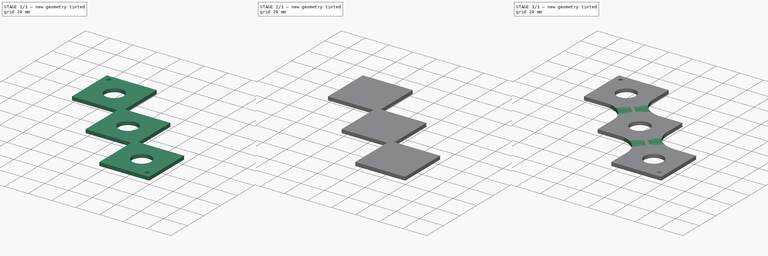
[diagram: build sequence overview — one tinted view per stage of 3, left to right]
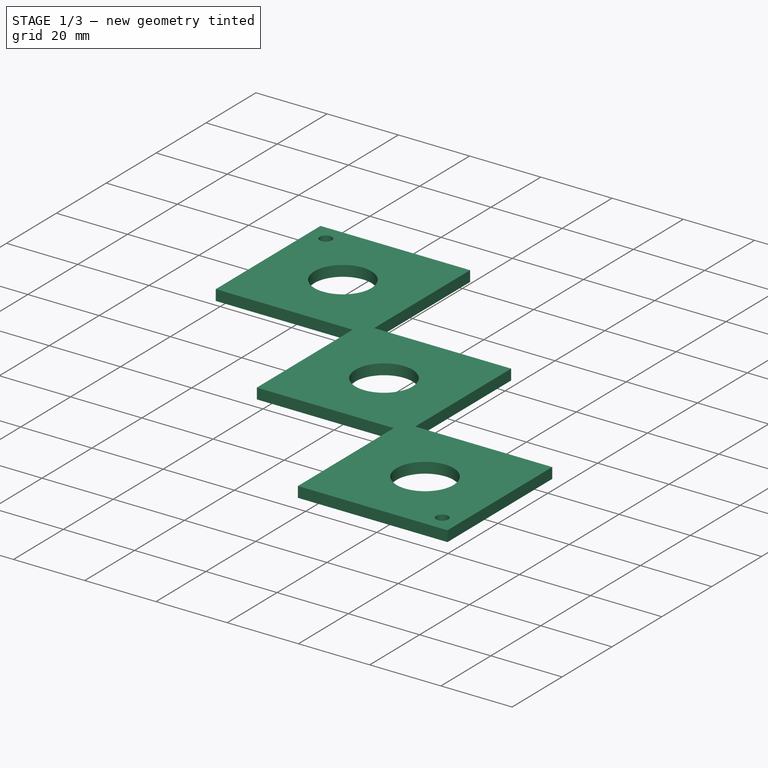
[diagram: stage 1 of 3 — iso view after this stage's code; geometry added in this stage tinted green]
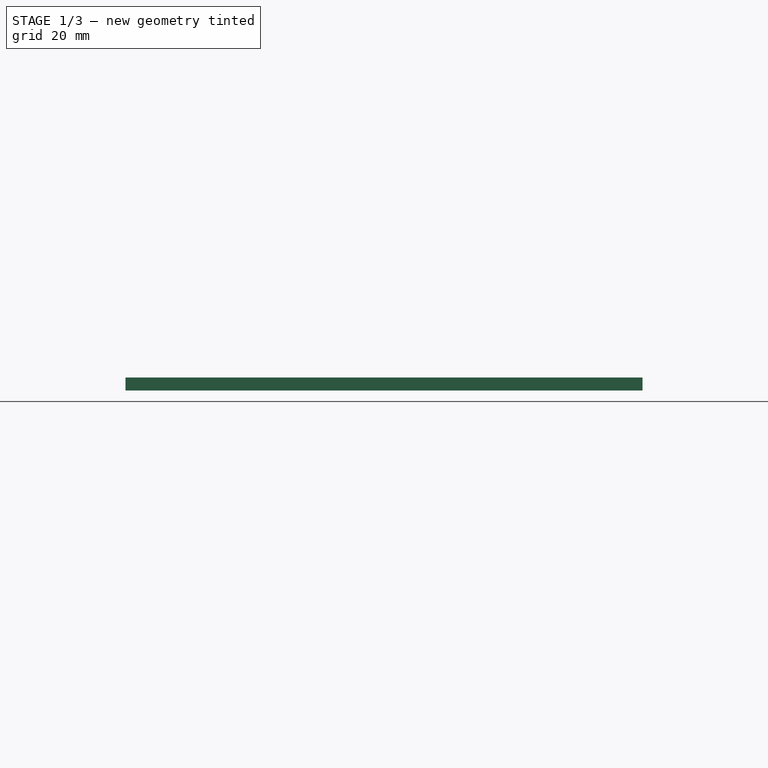
[diagram: stage 1 of 3 — front view after this stage's code; geometry added in this stage tinted green]
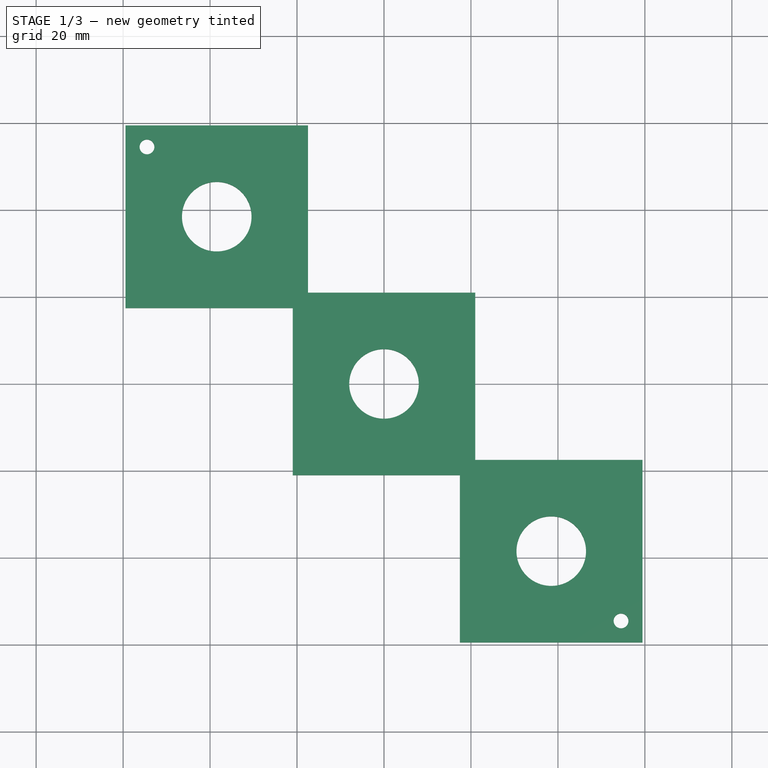
[diagram: stage 1 of 3 — top view after this stage's code; geometry added in this stage tinted green]
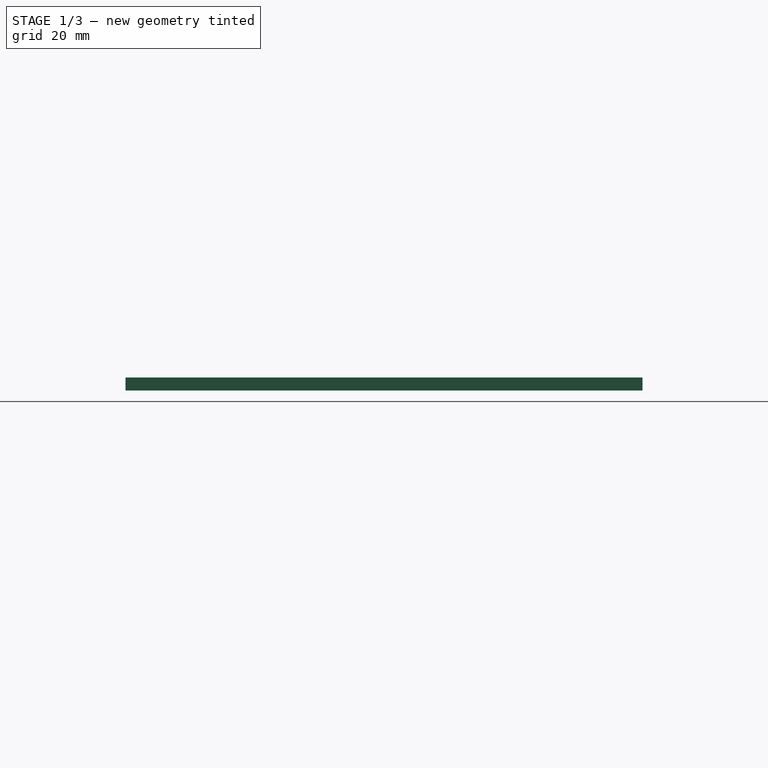
[diagram: stage 1 of 3 — right view after this stage's code; geometry added in this stage tinted green]
FCSTD DOCUMENT  (FreeCAD 0.18R14555 (Git shallow))
Label: Motor Plate
License: All rights reserved
LicenseURL: http://en.wikipedia.org/wiki/All_rights_reserved
objects: Sketcher::SketchObject×4, PartDesign::Pad×2, PartDesign::Pocket×2, PartDesign::Body×2, PartDesign::Fillet×1, PartDesign::Chamfer×1
note: 16 computed .brp shape members not serialized (recipe doc carries the construction recipe); baked Part::Feature solids carry a one-line shape summary decoded from their .brp

FEATURE [PartDesign::Body] Body
  Group = -> [Sketch,Pad,Sketch001,Pocket,Fillet]
  Origin = -> Origin
  Tip = -> Fillet
FEATURE [Sketcher::SketchObject] Sketch003
  MapMode = 2
  Placement = pos=(0,0,3) rot=(0,0,1;0rad)
  sketch-geometry (15):
    g0: LineSegment StartX=-59.4645 StartY=59.4645 StartZ=0 EndX=-59.4645 EndY=17.4645 EndZ=0
    g1: LineSegment StartX=-59.4645 StartY=17.4645 StartZ=0 EndX=-21 EndY=17.4645 EndZ=0
    g2: LineSegment StartX=-21 StartY=17.4645 StartZ=0 EndX=-21 EndY=-21 EndZ=0
    g3: LineSegment StartX=-21 StartY=-21 StartZ=0 EndX=17.4645 EndY=-21 EndZ=0
    g4: LineSegment StartX=17.4645 StartY=-21 StartZ=0 EndX=17.4645 EndY=-59.4645 EndZ=0
    g5: LineSegment StartX=17.4645 StartY=-59.4645 StartZ=0 EndX=59.4645 EndY=-59.4645 EndZ=0
    g6: LineSegment StartX=59.4645 StartY=-59.4645 StartZ=0 EndX=59.4645 EndY=-17.4645 EndZ=0
    g7: LineSegment StartX=59.4645 StartY=-17.4645 StartZ=0 EndX=21 EndY=-17.4645 EndZ=0
    g8: LineSegment StartX=21 StartY=-17.4645 StartZ=0 EndX=21 EndY=21 EndZ=0
    g9: LineSegment StartX=21 StartY=21 StartZ=0 EndX=-17.4645 EndY=21 EndZ=0
    g10: LineSegment StartX=-17.4645 StartY=21 StartZ=0 EndX=-17.4645 EndY=59.4645 EndZ=0
    g11: LineSegment StartX=-17.4645 StartY=59.4645 StartZ=0 EndX=-59.4645 EndY=59.4645 EndZ=0
    g12: LineSegment [constr] StartX=-17.4645 StartY=21 StartZ=0 EndX=-21 EndY=17.4645 EndZ=0
    g13: LineSegment [constr] StartX=21 StartY=-17.4645 StartZ=0 EndX=17.4645 EndY=-21 EndZ=0
    g14: LineSegment [constr] StartX=-19.2322 StartY=19.2322 StartZ=0 EndX=0 EndY=0 EndZ=0
  constraints (40):
    c: Coincident(g0,g1)
    c: Coincident(g2,g3)
    c: Coincident(g4,g5)
    c: Coincident(g5,g6)
    c: Coincident(g6,g7)
    c: Coincident(g8,g9)
    c: Coincident(g10,g11)
    c: Coincident(g11,g0)
    c: Horizontal(g11)
    c: Horizontal(g5)
    c: Horizontal(g7)
    c: Horizontal(g3)
    c: Horizontal(g9)
    c: Horizontal(g1)
    c: Vertical(g0)
    c: Vertical(g10)
    c: Vertical(g2)
    c: Vertical(g8)
    c: Equal(g0,g6)
    c: Equal(g11,g5)
    c: Equal(g10,g8)
    c: Equal(g9,g7)
    c: Equal(g1,g3)
    c: Equal(g11,g0)
    c: Symmetric(g8,g2,g-1)
    c: Symmetric(g0,g5,g-1)
    c: DistanceX(g11,g11) = 42
    c: Coincident(g10,g9)
    c: Coincident(g8,g7)
    c: Coincident(g4,g3)
    c: Coincident(g1,g2)
    c: Coincident(g12,g9)
    c: Coincident(g12,g1)
    c: Coincident(g13,g7)
    c: Coincident(g13,g3)
    c: Equal(g12,g13)
    c: Symmetric(g9,g1,g14)
    c: Coincident(g14,g-1)
    c: Distance(g12) = 5
    c: Perpendicular(g12,g14)
FEATURE [PartDesign::Pad] Pad001
  Length = 3
  Length2 = 100
  Placement = pos=(0,0,3) rot=(0,0,1;0rad)
  Profile = -> Sketch003
  Type = 0
FEATURE [Sketcher::SketchObject] Sketch002
  ExternalGeometry = -> [Pad001]
  MapMode = 5
  Placement = pos=(0,0,6) rot=(0,0,1;0rad)
  Support = -> [Pad001]
  sketch-geometry (9):
    g0: LineSegment [constr] StartX=-59.4645 StartY=59.4645 StartZ=0 EndX=59.4645 EndY=-59.4645 EndZ=0
    g1: LineSegment [constr] StartX=21 StartY=21 StartZ=0 EndX=-21 EndY=-21 EndZ=0
    g2: LineSegment [constr] StartX=-17.4645 StartY=59.4645 StartZ=0 EndX=-59.4645 EndY=17.4645 EndZ=0
    g3: LineSegment [constr] StartX=59.4645 StartY=-17.4645 StartZ=0 EndX=17.4645 EndY=-59.4645 EndZ=0
    g4: Circle CenterX=-38.4645 CenterY=38.4645 CenterZ=0 NormalX=0 NormalY=0 NormalZ=1 AngleXU=0 Radius=8
    g5: Circle CenterX=-1.9e-15 CenterY=-4.8e-15 CenterZ=0 NormalX=0 NormalY=0 NormalZ=1 AngleXU=0 Radius=8
    g6: Circle CenterX=38.4645 CenterY=-38.4645 CenterZ=0 NormalX=0 NormalY=0 NormalZ=1 AngleXU=0 Radius=8
    g7: Circle CenterX=-54.5147 CenterY=54.5147 CenterZ=0 NormalX=0 NormalY=0 NormalZ=1 AngleXU=0 Radius=1.7
    g8: Circle CenterX=54.5147 CenterY=-54.5147 CenterZ=0 NormalX=0 NormalY=0 NormalZ=1 AngleXU=0 Radius=1.7
  constraints (23):
    c: Coincident(g0,g-4)
    c: Coincident(g0,g-6)
    c: Coincident(g3,g-5)
    c: Coincident(g3,g-6)
    c: Coincident(g1,g-8)
    c: Coincident(g1,g-7)
    c: Coincident(g2,g-3)
    c: Coincident(g2,g-4)
    c: Equal(g6,g5)
    c: Equal(g5,g4)
    c: Radius(g6) = 8
    c: PointOnObject(g6,g0)
    c: PointOnObject(g6,g3)
    c: PointOnObject(g5,g0)
    c: PointOnObject(g5,g1)
    c: PointOnObject(g4,g2)
    c: PointOnObject(g4,g0)
    c: PointOnObject(g7,g0)
    c: PointOnObject(g8,g0)
    c: Equal(g8,g7)
    c: Radius(g7) = 1.7
    c: Distance(g7,g0) = 7
    c: Distance(g8,g0) = 7
FEATURE [PartDesign::Pocket] Pocket001
  BaseFeature = -> Pad001
  Length = 5
  Length2 = 100
  Placement = pos=(0,0,3) rot=(0,0,1;0rad)
  Profile = -> Sketch002
  Type = 1
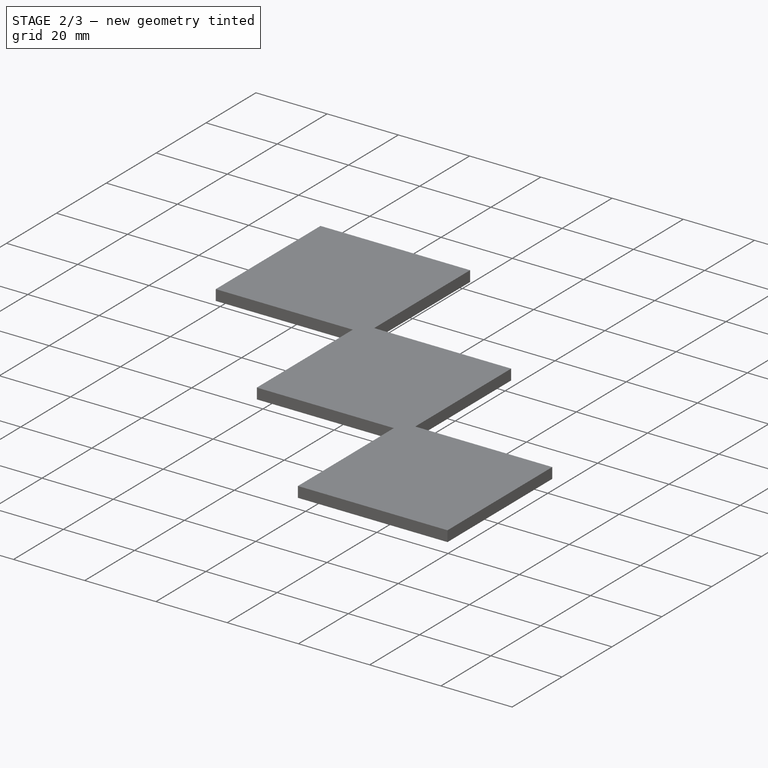
[diagram: stage 2 of 3 — iso view after this stage's code; geometry added in this stage tinted green]
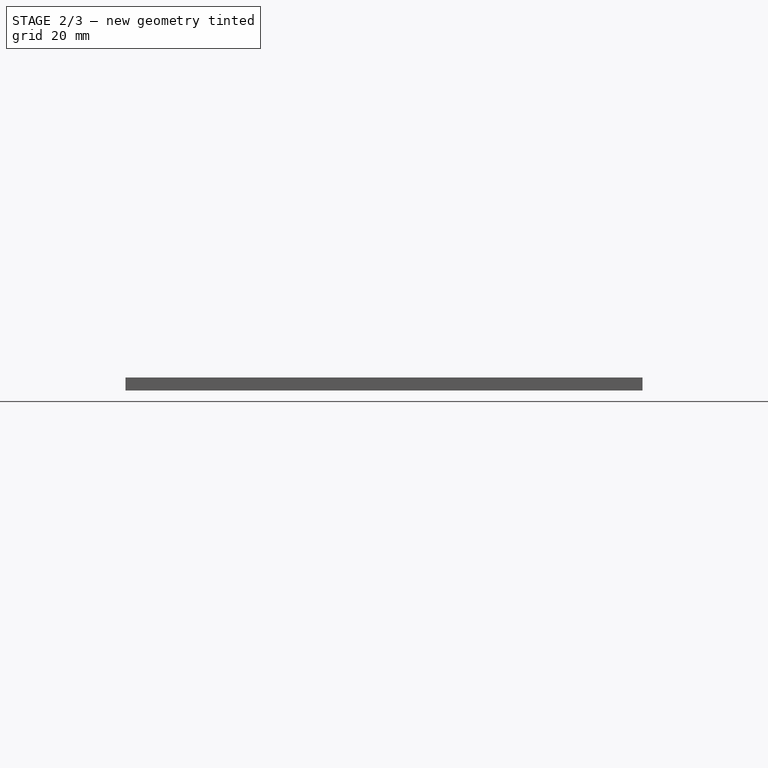
[diagram: stage 2 of 3 — front view after this stage's code; geometry added in this stage tinted green]
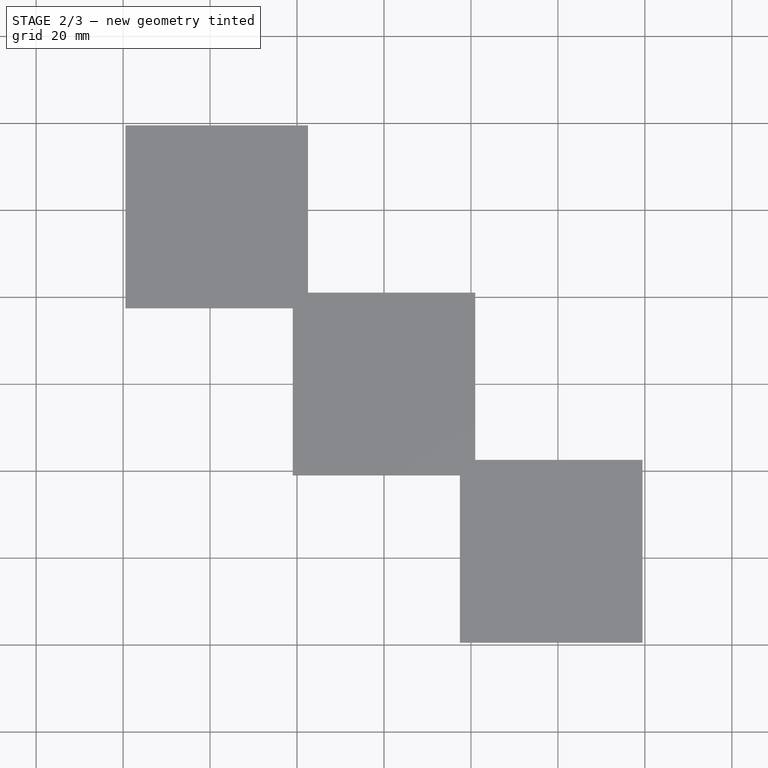
[diagram: stage 2 of 3 — top view after this stage's code; geometry added in this stage tinted green]
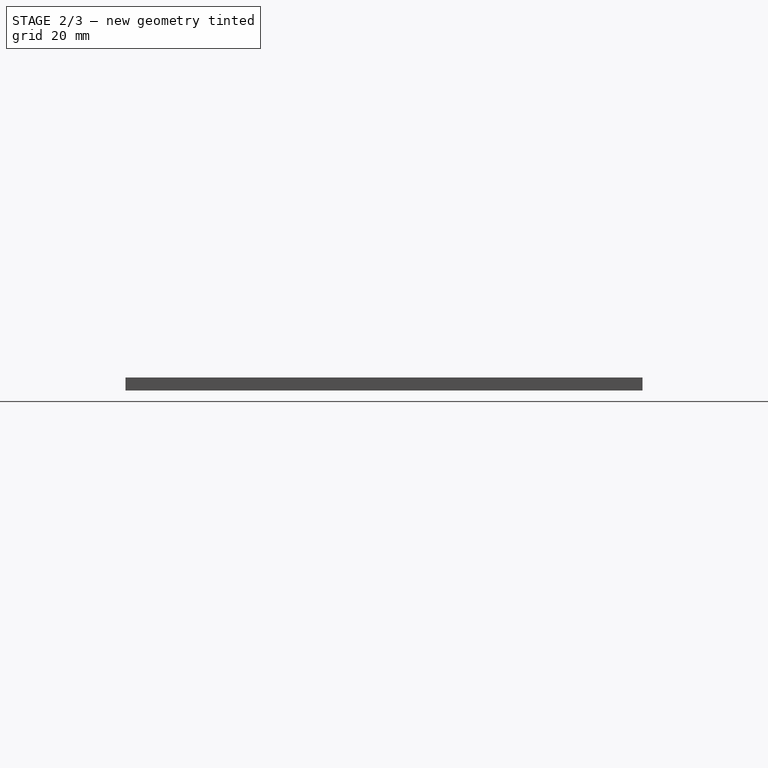
[diagram: stage 2 of 3 — right view after this stage's code; geometry added in this stage tinted green]
FEATURE [Sketcher::SketchObject] Sketch
  MapMode = 2
  Placement = pos=(0,0,3) rot=(0,0,1;0rad)
  sketch-geometry (15):
    g0: LineSegment StartX=-59.4645 StartY=59.4645 StartZ=0 EndX=-59.4645 EndY=17.4645 EndZ=0
    g1: LineSegment StartX=-59.4645 StartY=17.4645 StartZ=0 EndX=-21 EndY=17.4645 EndZ=0
    g2: LineSegment StartX=-21 StartY=17.4645 StartZ=0 EndX=-21 EndY=-21 EndZ=0
    g3: LineSegment StartX=-21 StartY=-21 StartZ=0 EndX=17.4645 EndY=-21 EndZ=0
    g4: LineSegment StartX=17.4645 StartY=-21 StartZ=0 EndX=17.4645 EndY=-59.4645 EndZ=0
    g5: LineSegment StartX=17.4645 StartY=-59.4645 StartZ=0 EndX=59.4645 EndY=-59.4645 EndZ=0
    g6: LineSegment StartX=59.4645 StartY=-59.4645 StartZ=0 EndX=59.4645 EndY=-17.4645 EndZ=0
    g7: LineSegment StartX=59.4645 StartY=-17.4645 StartZ=0 EndX=21 EndY=-17.4645 EndZ=0
    g8: LineSegment StartX=21 StartY=-17.4645 StartZ=0 EndX=21 EndY=21 EndZ=0
    g9: LineSegment StartX=21 StartY=21 StartZ=0 EndX=-17.4645 EndY=21 EndZ=0
    g10: LineSegment StartX=-17.4645 StartY=21 StartZ=0 EndX=-17.4645 EndY=59.4645 EndZ=0
    g11: LineSegment StartX=-17.4645 StartY=59.4645 StartZ=0 EndX=-59.4645 EndY=59.4645 EndZ=0
    g12: LineSegment [constr] StartX=-17.4645 StartY=21 StartZ=0 EndX=-21 EndY=17.4645 EndZ=0
    g13: LineSegment [constr] StartX=21 StartY=-17.4645 StartZ=0 EndX=17.4645 EndY=-21 EndZ=0
    g14: LineSegment [constr] StartX=-19.2322 StartY=19.2322 StartZ=0 EndX=0 EndY=0 EndZ=0
  constraints (40):
    c: Coincident(g0,g1)
    c: Coincident(g2,g3)
    c: Coincident(g4,g5)
    c: Coincident(g5,g6)
    c: Coincident(g6,g7)
    c: Coincident(g8,g9)
    c: Coincident(g10,g11)
    c: Coincident(g11,g0)
    c: Horizontal(g11)
    c: Horizontal(g5)
    c: Horizontal(g7)
    c: Horizontal(g3)
    c: Horizontal(g9)
    c: Horizontal(g1)
    c: Vertical(g0)
    c: Vertical(g10)
    c: Vertical(g2)
    c: Vertical(g8)
    c: Equal(g0,g6)
    c: Equal(g11,g5)
    c: Equal(g10,g8)
    c: Equal(g9,g7)
    c: Equal(g1,g3)
    c: Equal(g11,g0)
    c: Symmetric(g8,g2,g-1)
    c: Symmetric(g0,g5,g-1)
    c: DistanceX(g11,g11) = 42
    c: Coincident(g10,g9)
    c: Coincident(g8,g7)
    c: Coincident(g4,g3)
    c: Coincident(g1,g2)
    c: Coincident(g12,g9)
    c: Coincident(g12,g1)
    c: Coincident(g13,g7)
    c: Coincident(g13,g3)
    c: Equal(g12,g13)
    c: Symmetric(g9,g1,g14)
    c: Coincident(g14,g-1)
    c: Distance(g12) = 5
    c: Perpendicular(g12,g14)
FEATURE [PartDesign::Pad] Pad
  Length = 3
  Length2 = 100
  Placement = pos=(0,0,3) rot=(0,0,1;0rad)
  Profile = -> Sketch
  Type = 0
FEATURE [PartDesign::Chamfer] Chamfer
  Base = -> Pocket001 [Edge5,Edge41,Edge45,Edge2,Edge40,Edge44]
  BaseFeature = -> Pocket001
  Placement = pos=(0,0,3) rot=(0,0,1;0rad)
  Size = 8
FEATURE [PartDesign::Body] Body001  label="Holes"
  Group = -> [Sketch003,Pad001,Sketch002,Pocket001,Chamfer]
  Origin = -> Origin001
  Tip = -> Chamfer
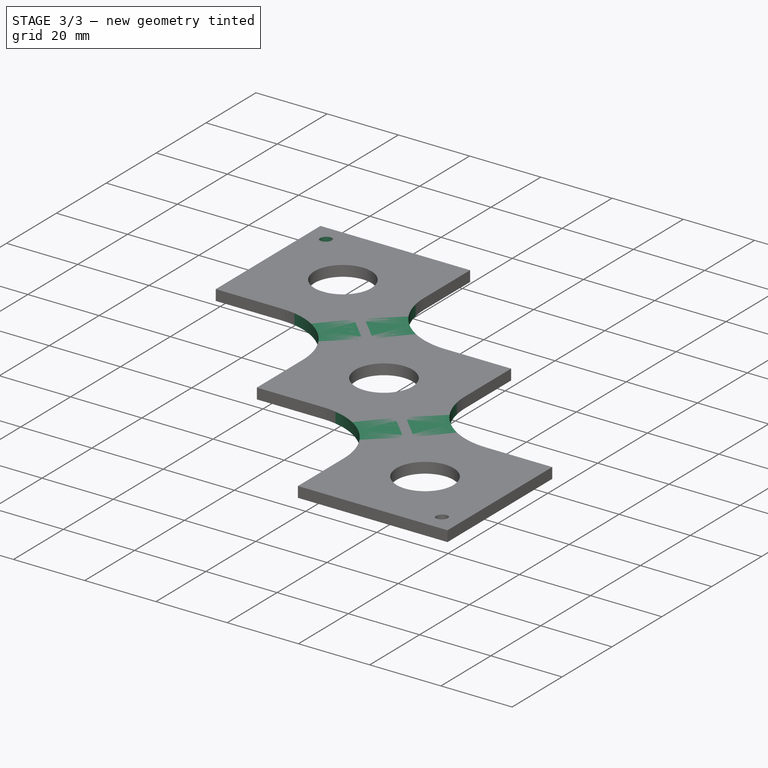
[diagram: stage 3 of 3 — iso view after this stage's code; geometry added in this stage tinted green]
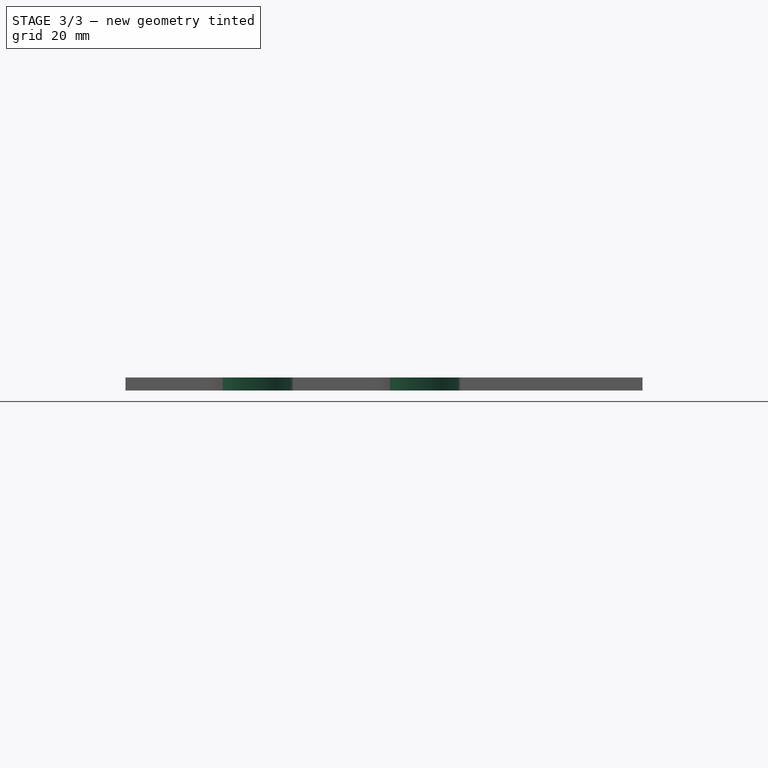
[diagram: stage 3 of 3 — front view after this stage's code; geometry added in this stage tinted green]
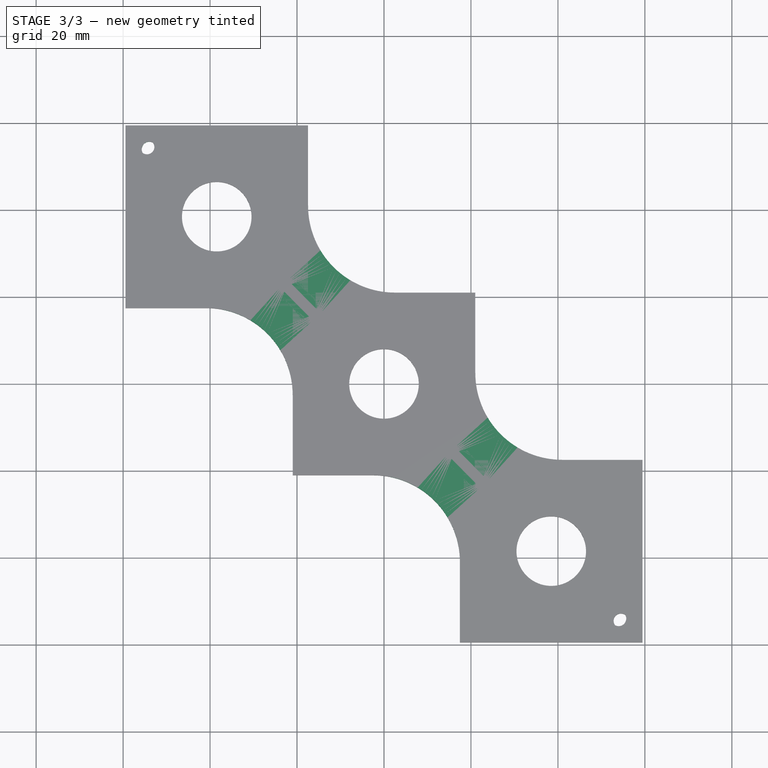
[diagram: stage 3 of 3 — top view after this stage's code; geometry added in this stage tinted green]
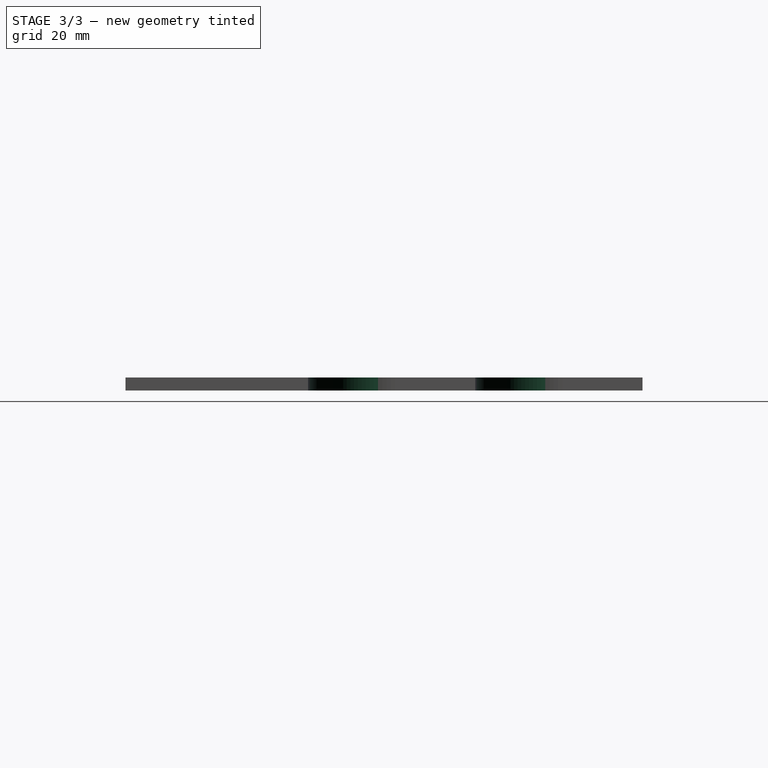
[diagram: stage 3 of 3 — right view after this stage's code; geometry added in this stage tinted green]
FEATURE [Sketcher::SketchObject] Sketch001
  ExternalGeometry = -> [Pad]
  MapMode = 5
  Placement = pos=(0,0,6) rot=(0,0,1;0rad)
  Support = -> [Pad]
  sketch-geometry (19):
    g0: LineSegment [constr] StartX=-59.4645 StartY=59.4645 StartZ=0 EndX=59.4645 EndY=-59.4645 EndZ=0
    g1: LineSegment [constr] StartX=21 StartY=21 StartZ=0 EndX=-21 EndY=-21 EndZ=0
    g2: LineSegment [constr] StartX=-17.4645 StartY=59.4645 StartZ=0 EndX=-59.4645 EndY=17.4645 EndZ=0
    g3: LineSegment [constr] StartX=59.4645 StartY=-17.4645 StartZ=0 EndX=17.4645 EndY=-59.4645 EndZ=0
    g4: Circle CenterX=-38.4645 CenterY=38.4645 CenterZ=0 NormalX=0 NormalY=0 NormalZ=1 AngleXU=0 Radius=11.5
    g5: Circle CenterX=-3e-16 CenterY=-3.2e-15 CenterZ=0 NormalX=0 NormalY=0 NormalZ=1 AngleXU=0 Radius=11.5
    g6: Circle CenterX=38.4645 CenterY=-38.4645 CenterZ=0 NormalX=0 NormalY=0 NormalZ=1 AngleXU=0 Radius=11.5
    g7: Circle CenterX=53.9645 CenterY=-22.9645 CenterZ=0 NormalX=0 NormalY=0 NormalZ=1 AngleXU=0 Radius=1.75
    g8: Circle CenterX=53.9645 CenterY=-53.9645 CenterZ=0 NormalX=0 NormalY=0 NormalZ=1 AngleXU=0 Radius=1.75
    g9: Circle CenterX=22.9645 CenterY=-53.9645 CenterZ=0 NormalX=0 NormalY=0 NormalZ=1 AngleXU=0 Radius=1.75
    g10: Circle CenterX=22.9645 CenterY=-22.9645 CenterZ=0 NormalX=0 NormalY=0 NormalZ=1 AngleXU=0 Radius=1.75
    g11: Circle CenterX=15.5 CenterY=-15.5 CenterZ=0 NormalX=0 NormalY=0 NormalZ=1 AngleXU=0 Radius=1.75
    g12: Circle CenterX=15.5 CenterY=15.5 CenterZ=0 NormalX=0 NormalY=0 NormalZ=1 AngleXU=0 Radius=1.75
    g13: Circle CenterX=-15.5 CenterY=15.5 CenterZ=0 NormalX=0 NormalY=0 NormalZ=1 AngleXU=0 Radius=1.75
    g14: Circle CenterX=-15.5 CenterY=-15.5 CenterZ=0 NormalX=0 NormalY=0 NormalZ=1 AngleXU=0 Radius=1.75
    g15: Circle CenterX=-22.9645 CenterY=22.9645 CenterZ=0 NormalX=0 NormalY=0 NormalZ=1 AngleXU=0 Radius=1.75
    g16: Circle CenterX=-53.9645 CenterY=22.9645 CenterZ=0 NormalX=0 NormalY=0 NormalZ=1 AngleXU=0 Radius=1.75
    g17: Circle CenterX=-53.9645 CenterY=53.9645 CenterZ=0 NormalX=0 NormalY=0 NormalZ=1 AngleXU=0 Radius=1.75
    g18: Circle CenterX=-22.9645 CenterY=53.9645 CenterZ=0 NormalX=0 NormalY=0 NormalZ=1 AngleXU=0 Radius=1.75
  constraints (53):
    c: Coincident(g0,g-4)
    c: Coincident(g0,g-6)
    c: Coincident(g3,g-5)
    c: Coincident(g3,g-6)
    c: Coincident(g1,g-8)
    c: Coincident(g1,g-7)
    c: Coincident(g2,g-3)
    c: Coincident(g2,g-4)
    c: Equal(g6,g5)
    c: Equal(g5,g4)
    c: Radius(g6) = 11.5
    c: PointOnObject(g6,g0)
    c: PointOnObject(g6,g3)
    c: PointOnObject(g5,g0)
    c: PointOnObject(g5,g1)
    c: PointOnObject(g4,g2)
    c: PointOnObject(g4,g0)
    c: Equal(g16,g17)
    c: Equal(g17,g18)
    c: Equal(g18,g15)
    c: Equal(g15,g13)
    c: Equal(g13,g14)
    c: Equal(g14,g12)
    c: Equal(g12,g11)
    c: Equal(g11,g10)
    c: Equal(g10,g9)
    c: Equal(g9,g8)
    c: Equal(g8,g7)
    c: Radius(g8) = 1.75
    c: PointOnObject(g15,g0)
    c: PointOnObject(g13,g0)
    c: PointOnObject(g17,g0)
    c: PointOnObject(g11,g0)
    c: PointOnObject(g10,g0)
    c: PointOnObject(g8,g0)
    c: PointOnObject(g7,g3)
    c: PointOnObject(g9,g3)
    c: PointOnObject(g14,g1)
    c: PointOnObject(g12,g1)
    c: PointOnObject(g18,g2)
    c: PointOnObject(g16,g2)
    c: Horizontal(g17,g18)
    c: Vertical(g16,g17)
    c: Vertical(g15,g18)
    c: Vertical(g13,g14)
    c: Horizontal(g12,g13)
    c: Vertical(g12,g11)
    c: Vertical(g10,g9)
    c: Horizontal(g10,g7)
    c: Vertical(g7,g8)
    c: DistanceX(g10,g7) = 31
    c: DistanceX(g13,g12) = 31
    c: DistanceX(g17,g18) = 31
FEATURE [PartDesign::Pocket] Pocket
  BaseFeature = -> Pad
  Length = 5
  Length2 = 100
  Placement = pos=(0,0,3) rot=(0,0,1;0rad)
  Profile = -> Sketch001
  Type = 1
FEATURE [PartDesign::Fillet] Fillet
  Base = -> Pocket [Edge8,Edge59,Edge63,Edge62]
  BaseFeature = -> Pocket
  Placement = pos=(0,0,3) rot=(0,0,1;0rad)
  Radius = 20
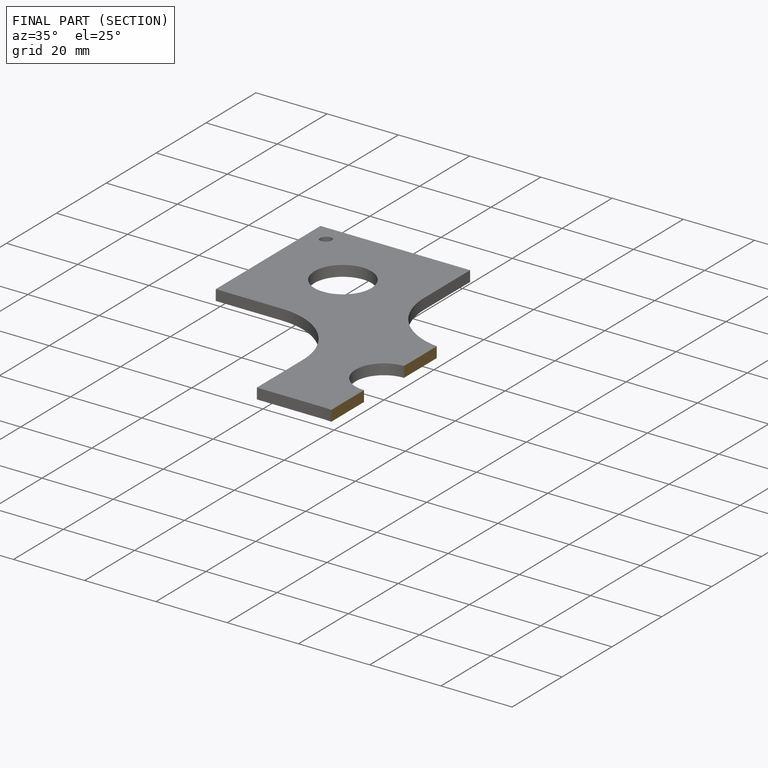
[diagram: finished part — half-section view (interior)]
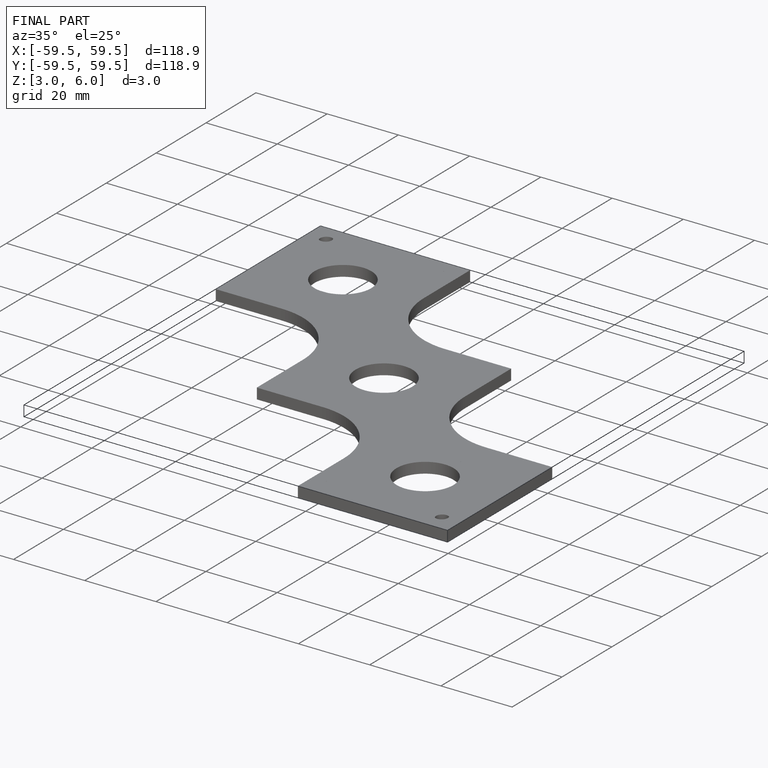
[diagram: finished part — iso view with bounding-box wireframe]
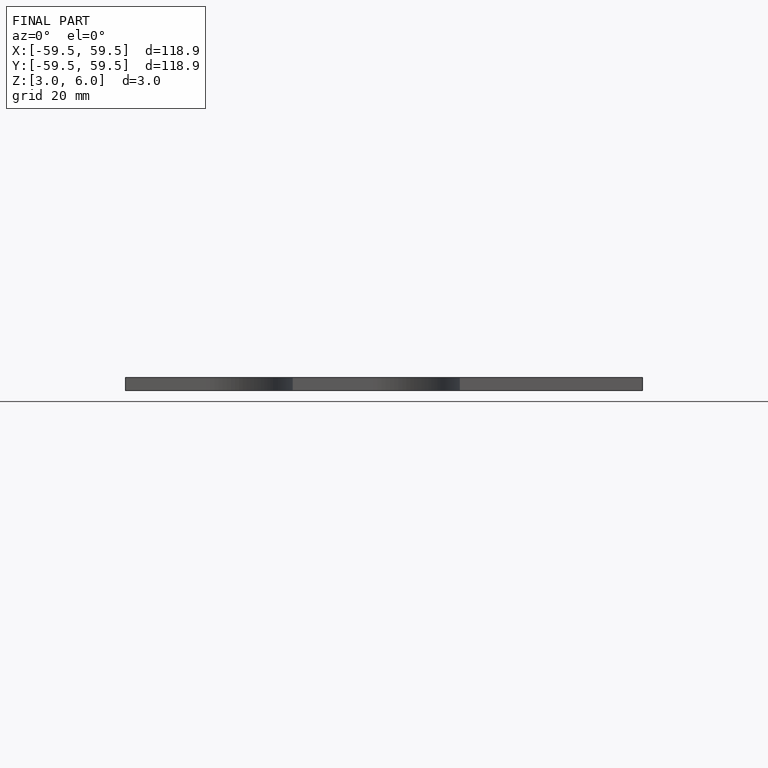
[diagram: finished part — front view with bounding-box wireframe]
